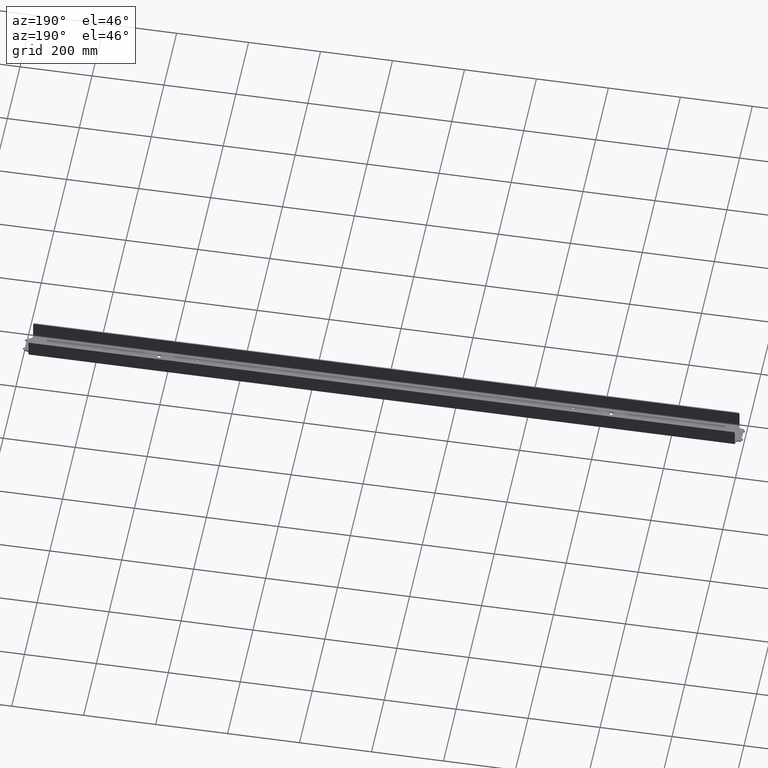
[diagram: clean part render]
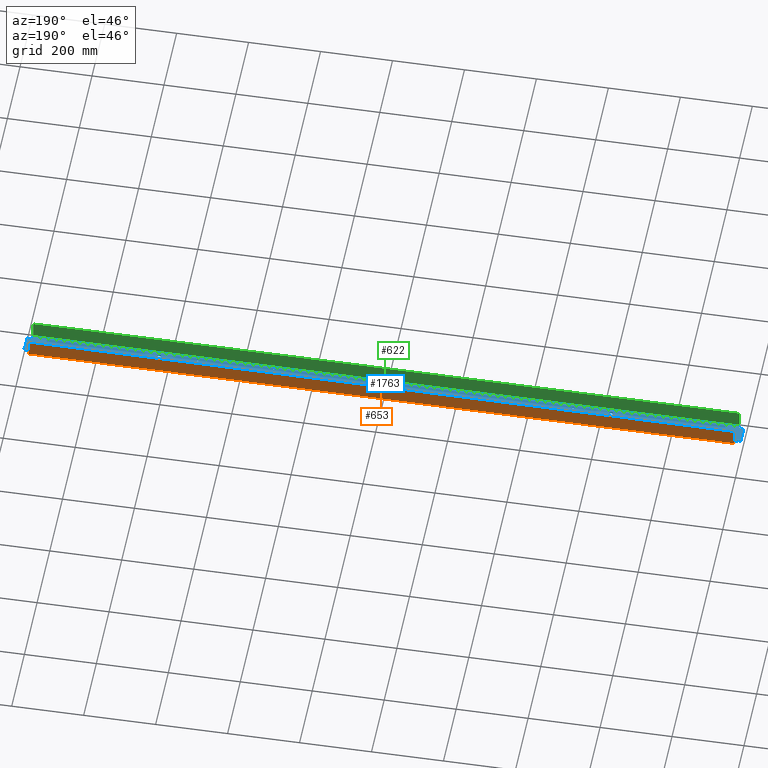
[diagram: same view with three faces highlighted in distinct colors, each labeled with its STEP entity id]
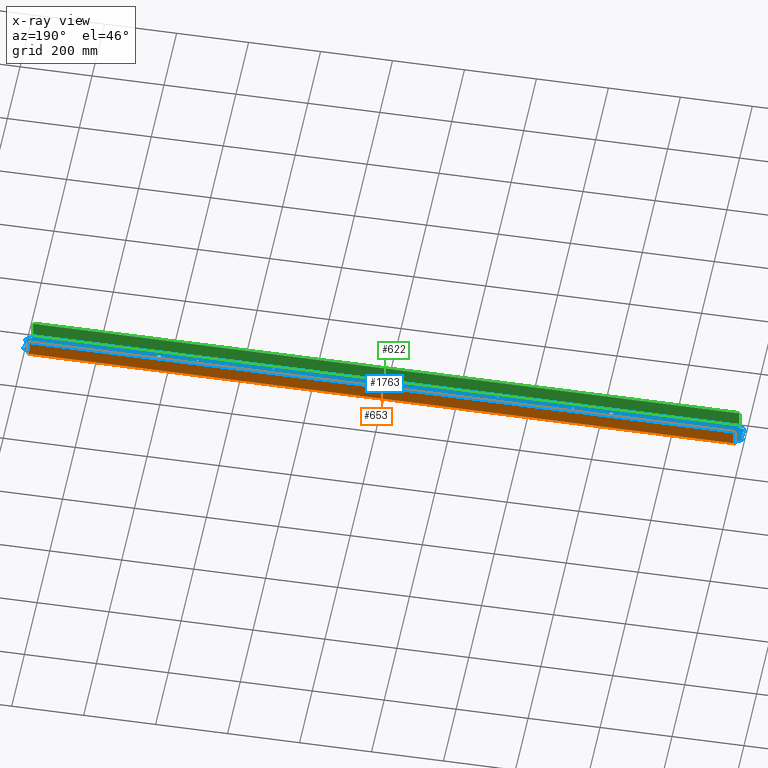
[diagram: x-ray of the same camera — body ghosted, the three highlighted faces saturated]
A machine part, auxiliary view with three faces highlighted in distinct colors.
The next image is the same camera in x-ray (body ghosted, the three faces saturated) — at least one of them is partly hidden behind the body in this view.
Their STEP definitions:

[orange] entity #653 — the highlighted planar face has unit normal (0, -1, 0).
#36 = AXIS2_PLACEMENT_3D ( 'NONE', #2131, #2090, #125 ) ;
#74 = LINE ( 'NONE', #2944, #1698 ) ;
#95 = AXIS2_PLACEMENT_3D ( 'NONE', #2272, #1288, #1259 ) ;
#125 = DIRECTION ( 'NONE',  ( 0.000000000000000000, 0.000000000000000000, -1.000000000000000000 ) ) ;
#236 = ORIENTED_EDGE ( 'NONE', *, *, #1657, .F. ) ;
#350 = VERTEX_POINT ( 'NONE', #1719 ) ;
#351 = AXIS2_PLACEMENT_3D ( 'NONE', #1675, #1844, #901 ) ;
#498 = CARTESIAN_POINT ( 'NONE',  ( 976.4999999999996589, -1093.805262667904117, 675.0000000000002274 ) ) ;
#538 = LINE ( 'NONE', #1013, #604 ) ;
#604 = VECTOR ( 'NONE', #1001, 1000.000000000000000 ) ;
#637 = ORIENTED_EDGE ( 'NONE', *, *, #1626, .F. ) ;
#653 = ADVANCED_FACE ( 'NONE', ( #1769 ), #1531, .F. ) ;
#667 = VECTOR ( 'NONE', #1493, 1000.000000000000000 ) ;
#901 = DIRECTION ( 'NONE',  ( 0.000000000000000000, 0.000000000000000000, -1.000000000000000000 ) ) ;
#943 = VERTEX_POINT ( 'NONE', #2890 ) ;
#964 = VERTEX_POINT ( 'NONE', #985 ) ;
#985 = CARTESIAN_POINT ( 'NONE',  ( -981.4999999999995453, -1093.805262667904117, 670.0000000000002274 ) ) ;
#1001 = DIRECTION ( 'NONE',  ( -0.000000000000000000, 0.000000000000000000, 1.000000000000000000 ) ) ;
#1013 = CARTESIAN_POINT ( 'NONE',  ( 981.4999999999996589, -1093.805262667904117, 625.0000000000001137 ) ) ;
#1200 = EDGE_CURVE ( 'NONE', #1921, #2620, #2923, .T. ) ;
#1258 = ORIENTED_EDGE ( 'NONE', *, *, #1200, .F. ) ;
#1259 = DIRECTION ( 'NONE',  ( 0.000000000000000000, -0.000000000000000000, -1.000000000000000000 ) ) ;
#1288 = DIRECTION ( 'NONE',  ( 0.000000000000000000, -1.000000000000000000, 0.000000000000000000 ) ) ;
#1493 = DIRECTION ( 'NONE',  ( -1.000000000000000000, 0.000000000000000000, 0.000000000000000000 ) ) ;
#1531 = PLANE ( 'NONE',  #95 ) ;
#1626 = EDGE_CURVE ( 'NONE', #350, #1921, #2844, .T. ) ;
#1657 = EDGE_CURVE ( 'NONE', #2620, #964, #2583, .T. ) ;
#1675 = CARTESIAN_POINT ( 'NONE',  ( 976.4999999999996589, -1093.805262667904117, 670.0000000000002274 ) ) ;
#1697 = EDGE_CURVE ( 'NONE', #943, #1962, #3200, .T. ) ;
#1698 = VECTOR ( 'NONE', #2102, 1000.000000000000000 ) ;
#1719 = CARTESIAN_POINT ( 'NONE',  ( 981.4999999999996589, -1093.805262667904117, 670.0000000000002274 ) ) ;
#1769 = FACE_OUTER_BOUND ( 'NONE', #2543, .T. ) ;
#1780 = CARTESIAN_POINT ( 'NONE',  ( -981.4999999999995453, -1093.805262667904117, 631.0000000000001137 ) ) ;
#1830 = DIRECTION ( 'NONE',  ( -1.000000000000000000, -0.000000000000000000, -0.000000000000000000 ) ) ;
#1836 = ORIENTED_EDGE ( 'NONE', *, *, #2440, .F. ) ;
#1844 = DIRECTION ( 'NONE',  ( 0.000000000000000000, -1.000000000000000000, 0.000000000000000000 ) ) ;
#1921 = VERTEX_POINT ( 'NONE', #498 ) ;
#1962 = VERTEX_POINT ( 'NONE', #1780 ) ;
#2017 = CARTESIAN_POINT ( 'NONE',  ( -976.4999999999996589, -1093.805262667904117, 675.0000000000002274 ) ) ;
#2090 = DIRECTION ( 'NONE',  ( 0.000000000000000000, -1.000000000000000000, 0.000000000000000000 ) ) ;
#2102 = DIRECTION ( 'NONE',  ( 0.000000000000000000, -0.000000000000000000, -1.000000000000000000 ) ) ;
#2131 = CARTESIAN_POINT ( 'NONE',  ( -976.4999999999996589, -1093.805262667904117, 670.0000000000002274 ) ) ;
#2263 = VECTOR ( 'NONE', #1830, 1000.000000000000000 ) ;
#2272 = CARTESIAN_POINT ( 'NONE',  ( 1090.972523324353915, -1093.805262667904117, 625.0000000000001137 ) ) ;
#2322 = ORIENTED_EDGE ( 'NONE', *, *, #2708, .F. ) ;
#2440 = EDGE_CURVE ( 'NONE', #943, #350, #538, .T. ) ;
#2543 = EDGE_LOOP ( 'NONE', ( #1836, #2996, #2322, #236, #1258, #637 ) ) ;
#2583 = CIRCLE ( 'NONE', #36, 5.000000000000004441 ) ;
#2620 = VERTEX_POINT ( 'NONE', #2017 ) ;
#2708 = EDGE_CURVE ( 'NONE', #964, #1962, #74, .T. ) ;
#2844 = CIRCLE ( 'NONE', #351, 5.000000000000004441 ) ;
#2867 = CARTESIAN_POINT ( 'NONE',  ( 1090.972523324353915, -1093.805262667904117, 675.0000000000002274 ) ) ;
#2890 = CARTESIAN_POINT ( 'NONE',  ( 981.4999999999996589, -1093.805262667904117, 631.0000000000001137 ) ) ;
#2923 = LINE ( 'NONE', #2867, #2263 ) ;
#2944 = CARTESIAN_POINT ( 'NONE',  ( -981.4999999999995453, -1093.805262667904117, 625.0000000000001137 ) ) ;
#2996 = ORIENTED_EDGE ( 'NONE', *, *, #1697, .T. ) ;
#3200 = LINE ( 'NONE', #3232, #667 ) ;
#3232 = CARTESIAN_POINT ( 'NONE',  ( 1090.972523324353915, -1093.805262667904117, 631.0000000000001137 ) ) ;

[blue] entity #1763 — the highlighted planar face has unit normal (-0, 0, 1).
#1 = EDGE_CURVE ( 'NONE', #1839, #1101, #522, .T. ) ;
#6 = CARTESIAN_POINT ( 'NONE',  ( -523.1000000000003638, -1093.805262667904117, 628.0000000000001137 ) ) ;
#7 = VERTEX_POINT ( 'NONE', #2026 ) ;
#9 = EDGE_CURVE ( 'NONE', #915, #3000, #3051, .T. ) ;
#13 = CARTESIAN_POINT ( 'NONE',  ( 981.4999999999996589, -1163.805262667904117, 628.0000000000001137 ) ) ;
#20 = DIRECTION ( 'NONE',  ( 0.000000000000000000, -1.000000000000000000, 0.000000000000000000 ) ) ;
#22 = LINE ( 'NONE', #1572, #1954 ) ;
#23 = DIRECTION ( 'NONE',  ( 1.000000000000000000, 0.000000000000000000, 0.000000000000000000 ) ) ;
#29 = CIRCLE ( 'NONE', #1492, 5.000000000000115463 ) ;
#31 = DIRECTION ( 'NONE',  ( 0.000000000000000000, 1.000000000000000000, -0.000000000000000000 ) ) ;
#32 = AXIS2_PLACEMENT_3D ( 'NONE', #1519, #1963, #2517 ) ;
#44 = CARTESIAN_POINT ( 'NONE',  ( -309.8999999999996362, -1102.805262667903889, 628.0000000000001137 ) ) ;
#51 = CARTESIAN_POINT ( 'NONE',  ( -998.9999999999996589, -1113.305262667903662, 628.0000000000000000 ) ) ;
#59 = EDGE_CURVE ( 'NONE', #1406, #444, #2540, .T. ) ;
#63 = VERTEX_POINT ( 'NONE', #2544 ) ;
#65 = DIRECTION ( 'NONE',  ( 0.000000000000000000, 0.000000000000000000, 1.000000000000000000 ) ) ;
#67 = CARTESIAN_POINT ( 'NONE',  ( -996.0000000000006821, -1150.305262667904117, 628.0000000000000000 ) ) ;
#68 = EDGE_CURVE ( 'NONE', #2932, #189, #532, .T. ) ;
#77 = VERTEX_POINT ( 'NONE', #51 ) ;
#79 = DIRECTION ( 'NONE',  ( 0.000000000000000000, -0.000000000000000000, -1.000000000000000000 ) ) ;
#89 = VECTOR ( 'NONE', #2449, 1000.000000000000000 ) ;
#91 = AXIS2_PLACEMENT_3D ( 'NONE', #619, #1073, #2606 ) ;
#97 = CARTESIAN_POINT ( 'NONE',  ( -523.1000000000005912, -1113.805262667903662, 628.0000000000001137 ) ) ;
#104 = CARTESIAN_POINT ( 'NONE',  ( -313.0999999999996248, -1108.805262667903889, 628.0000000000001137 ) ) ;
#119 = ORIENTED_EDGE ( 'NONE', *, *, #2022, .T. ) ;
#124 = DIRECTION ( 'NONE',  ( -1.000000000000000000, 0.000000000000000000, 0.000000000000000000 ) ) ;
#128 = CARTESIAN_POINT ( 'NONE',  ( 990.0000000000006821, -1108.305262667903662, 628.0000000000001137 ) ) ;
#142 = CARTESIAN_POINT ( 'NONE',  ( -989.9999999999995453, -1099.805262667904117, 628.0000000000001137 ) ) ;
#143 = VECTOR ( 'NONE', #124, 1000.000000000000000 ) ;
#153 = ORIENTED_EDGE ( 'NONE', *, *, #1056, .T. ) ;
#154 = ORIENTED_EDGE ( 'NONE', *, *, #2775, .T. ) ;
#156 = VECTOR ( 'NONE', #1539, 1000.000000000000000 ) ;
#159 = ORIENTED_EDGE ( 'NONE', *, *, #1432, .T. ) ;
#162 = DIRECTION ( 'NONE',  ( -1.000000000000000000, 0.000000000000000000, -0.000000000000000000 ) ) ;
#163 = CARTESIAN_POINT ( 'NONE',  ( -313.0999999999996248, -1160.805262667903662, 628.0000000000001137 ) ) ;
#174 = EDGE_CURVE ( 'NONE', #3205, #2829, #1619, .T. ) ;
#176 = VERTEX_POINT ( 'NONE', #700 ) ;
#178 = CARTESIAN_POINT ( 'NONE',  ( -523.1000000000005912, -1155.805262667904344, 628.0000000000001137 ) ) ;
#179 = LINE ( 'NONE', #2469, #3114 ) ;
#187 = VERTEX_POINT ( 'NONE', #437 ) ;
#189 = VERTEX_POINT ( 'NONE', #1395 ) ;
#193 = ORIENTED_EDGE ( 'NONE', *, *, #322, .F. ) ;
#195 = EDGE_CURVE ( 'NONE', #2410, #1363, #921, .T. ) ;
#212 = AXIS2_PLACEMENT_3D ( 'NONE', #574, #311, #542 ) ;
#213 = CARTESIAN_POINT ( 'NONE',  ( -998.9999999999996589, -1114.305262667903435, 628.0000000000000000 ) ) ;
#215 = CARTESIAN_POINT ( 'NONE',  ( 996.0000000000003411, -1093.805262667904117, 628.0000000000001137 ) ) ;
#219 = CARTESIAN_POINT ( 'NONE',  ( -523.1000000000004775, -1149.805262667904344, 628.0000000000001137 ) ) ;
#222 = ORIENTED_EDGE ( 'NONE', *, *, #456, .T. ) ;
#224 = EDGE_CURVE ( 'NONE', #3000, #1958, #668, .T. ) ;
#226 = LINE ( 'NONE', #2982, #1029 ) ;
#237 = CARTESIAN_POINT ( 'NONE',  ( 989.9999999999995453, -1163.805262667904117, 628.0000000000001137 ) ) ;
#242 = DIRECTION ( 'NONE',  ( 0.000000000000000000, -1.000000000000000000, 0.000000000000000000 ) ) ;
#251 = CARTESIAN_POINT ( 'NONE',  ( -998.9999999999996589, -1117.305262667903662, 628.0000000000000000 ) ) ;
#252 = ORIENTED_EDGE ( 'NONE', *, *, #2886, .F. ) ;
#253 = AXIS2_PLACEMENT_3D ( 'NONE', #1272, #1974, #760 ) ;
#266 = DIRECTION ( 'NONE',  ( 1.000000000000000000, -0.000000000000000000, 0.000000000000000000 ) ) ;
#271 = CIRCLE ( 'NONE', #2446, 1.000000000000000888 ) ;
#276 = CARTESIAN_POINT ( 'NONE',  ( 519.9000000000004320, -1155.805262667904344, 628.0000000000001137 ) ) ;
#277 = EDGE_CURVE ( 'NONE', #3086, #7, #1394, .T. ) ;
#279 = CARTESIAN_POINT ( 'NONE',  ( -309.8999999999996362, -1102.805262667903889, 628.0000000000001137 ) ) ;
#284 = ORIENTED_EDGE ( 'NONE', *, *, #2863, .F. ) ;
#300 = VECTOR ( 'NONE', #2291, 1000.000000000000000 ) ;
#311 = DIRECTION ( 'NONE',  ( -0.000000000000000000, -0.000000000000000000, -1.000000000000000000 ) ) ;
#319 = CARTESIAN_POINT ( 'NONE',  ( 628.1567381882845211, -1113.805262667904117, 628.0000000000001137 ) ) ;
#320 = ORIENTED_EDGE ( 'NONE', *, *, #2613, .F. ) ;
#322 = EDGE_CURVE ( 'NONE', #77, #2731, #2215, .T. ) ;
#324 = DIRECTION ( 'NONE',  ( -1.000000000000000000, -0.000000000000000000, -0.000000000000000000 ) ) ;
#328 = ORIENTED_EDGE ( 'NONE', *, *, #2071, .T. ) ;
#329 = ORIENTED_EDGE ( 'NONE', *, *, #1452, .T. ) ;
#332 = EDGE_CURVE ( 'NONE', #1958, #1802, #1473, .T. ) ;
#335 = CARTESIAN_POINT ( 'NONE',  ( -313.0999999999996248, -1108.805262667903889, 628.0000000000001137 ) ) ;
#342 = DIRECTION ( 'NONE',  ( 0.000000000000000000, 1.000000000000000000, 0.000000000000000000 ) ) ;
#347 = VERTEX_POINT ( 'NONE', #13 ) ;
#354 = CIRCLE ( 'NONE', #3220, 1.000000000000000888 ) ;
#357 = VERTEX_POINT ( 'NONE', #990 ) ;
#361 = DIRECTION ( 'NONE',  ( -1.000000000000000000, 0.000000000000000000, -0.000000000000000000 ) ) ;
#368 = EDGE_CURVE ( 'NONE', #2932, #1939, #2911, .T. ) ;
#370 = EDGE_CURVE ( 'NONE', #2029, #2081, #778, .T. ) ;
#375 = LINE ( 'NONE', #2584, #2314 ) ;
#394 = CARTESIAN_POINT ( 'NONE',  ( 996.0000000000003411, -1150.305262667904117, 628.0000000000001137 ) ) ;
#421 = LINE ( 'NONE', #1458, #2438 ) ;
#431 = VERTEX_POINT ( 'NONE', #593 ) ;
#432 = EDGE_LOOP ( 'NONE', ( #2305, #2391, #568, #1541 ) ) ;
#433 = LINE ( 'NONE', #1392, #1743 ) ;
#434 = FACE_OUTER_BOUND ( 'NONE', #791, .T. ) ;
#435 = LINE ( 'NONE', #937, #1598 ) ;
#437 = CARTESIAN_POINT ( 'NONE',  ( -523.1000000000004775, -1107.805262667903889, 628.0000000000001137 ) ) ;
#438 = DIRECTION ( 'NONE',  ( 1.000000000000000000, 0.000000000000000000, 0.000000000000000000 ) ) ;
#441 = CARTESIAN_POINT ( 'NONE',  ( 523.1000000000004775, -1093.805262667904117, 628.0000000000001137 ) ) ;
#444 = VERTEX_POINT ( 'NONE', #1591 ) ;
#445 = CARTESIAN_POINT ( 'NONE',  ( -996.0000000000006821, -1113.305262667903662, 628.0000000000000000 ) ) ;
#449 = ORIENTED_EDGE ( 'NONE', *, *, #3212, .T. ) ;
#456 = EDGE_CURVE ( 'NONE', #189, #1909, #375, .T. ) ;
#460 = VECTOR ( 'NONE', #1898, 1000.000000000000000 ) ;
#462 = DIRECTION ( 'NONE',  ( 1.000000000000000000, 0.000000000000000000, 0.000000000000000000 ) ) ;
#463 = ORIENTED_EDGE ( 'NONE', *, *, #2502, .F. ) ;
#464 = DIRECTION ( 'NONE',  ( 0.000000000000000000, -1.000000000000000000, 0.000000000000000000 ) ) ;
#470 = FACE_BOUND ( 'NONE', #3122, .T. ) ;
#483 = ORIENTED_EDGE ( 'NONE', *, *, #1209, .T. ) ;
#484 = CARTESIAN_POINT ( 'NONE',  ( -313.0999999999996248, -1102.805262667903889, 628.0000000000001137 ) ) ;
#486 = CARTESIAN_POINT ( 'NONE',  ( -1003.999999999998636, -1113.305262667903662, 628.0000000000000000 ) ) ;
#487 = CARTESIAN_POINT ( 'NONE',  ( 1003.999999999998636, -1150.305262667904117, 628.0000000000000000 ) ) ;
#493 = CARTESIAN_POINT ( 'NONE',  ( 309.8999999999996362, -1108.805262667903889, 628.0000000000001137 ) ) ;
#495 = ORIENTED_EDGE ( 'NONE', *, *, #1574, .F. ) ;
#496 = EDGE_CURVE ( 'NONE', #2734, #2261, #2264, .T. ) ;
#503 = VECTOR ( 'NONE', #817, 1000.000000000000000 ) ;
#504 = EDGE_CURVE ( 'NONE', #1046, #431, #1756, .T. ) ;
#507 = LINE ( 'NONE', #2817, #2718 ) ;
#518 = VECTOR ( 'NONE', #2297, 1000.000000000000000 ) ;
#520 = VERTEX_POINT ( 'NONE', #44 ) ;
#522 = LINE ( 'NONE', #2560, #1497 ) ;
#525 = DIRECTION ( 'NONE',  ( 0.000000000000000000, 1.000000000000000000, 0.000000000000000000 ) ) ;
#526 = CARTESIAN_POINT ( 'NONE',  ( 523.1000000000004775, -1155.805262667904344, 628.0000000000001137 ) ) ;
#528 = CARTESIAN_POINT ( 'NONE',  ( 996.0000000000003411, -1118.305262667903435, 628.0000000000001137 ) ) ;
#532 = LINE ( 'NONE', #1546, #1997 ) ;
#536 = CARTESIAN_POINT ( 'NONE',  ( -996.0000000000006821, -1108.305262667903662, 628.0000000000001137 ) ) ;
#542 = DIRECTION ( 'NONE',  ( -1.000000000000000000, 0.000000000000000000, 0.000000000000000000 ) ) ;
#547 = VECTOR ( 'NONE', #1661, 1000.000000000000000 ) ;
#551 = EDGE_CURVE ( 'NONE', #2946, #2029, #421, .T. ) ;
#564 = VECTOR ( 'NONE', #840, 1000.000000000000000 ) ;
#568 = ORIENTED_EDGE ( 'NONE', *, *, #2350, .F. ) ;
#571 = EDGE_CURVE ( 'NONE', #1104, #2410, #2053, .T. ) ;
#574 = CARTESIAN_POINT ( 'NONE',  ( 998.9999999999996589, -1146.305262667904117, 628.0000000000000000 ) ) ;
#575 = VERTEX_POINT ( 'NONE', #1696 ) ;
#577 = EDGE_CURVE ( 'NONE', #2629, #1331, #1421, .T. ) ;
#582 = CARTESIAN_POINT ( 'NONE',  ( -628.1567381882845211, -1113.805262667904117, 628.0000000000001137 ) ) ;
#593 = CARTESIAN_POINT ( 'NONE',  ( 999.9999999999996589, -1146.305262667904117, 628.0000000000000000 ) ) ;
#596 = DIRECTION ( 'NONE',  ( -1.000000000000000000, 0.000000000000000000, 0.000000000000000000 ) ) ;
#597 = VECTOR ( 'NONE', #1155, 1000.000000000000000 ) ;
#598 = CARTESIAN_POINT ( 'NONE',  ( -313.0999999999996248, -1154.805262667903889, 628.0000000000001137 ) ) ;
#601 = VERTEX_POINT ( 'NONE', #493 ) ;
#606 = VECTOR ( 'NONE', #342, 1000.000000000000000 ) ;
#607 = VERTEX_POINT ( 'NONE', #1243 ) ;
#611 = EDGE_CURVE ( 'NONE', #2337, #1459, #2767, .T. ) ;
#618 = VECTOR ( 'NONE', #640, 1000.000000000000000 ) ;
#619 = CARTESIAN_POINT ( 'NONE',  ( -998.9999999999996589, -1146.305262667904117, 628.0000000000000000 ) ) ;
#624 = CARTESIAN_POINT ( 'NONE',  ( 313.0999999999996248, -1108.805262667903889, 628.0000000000001137 ) ) ;
#635 = VERTEX_POINT ( 'NONE', #3028 ) ;
#640 = DIRECTION ( 'NONE',  ( 0.000000000000000000, 1.000000000000000000, 0.000000000000000000 ) ) ;
#642 = VERTEX_POINT ( 'NONE', #276 ) ;
#644 = CARTESIAN_POINT ( 'NONE',  ( -309.8999999999996362, -1160.805262667903662, 628.0000000000001137 ) ) ;
#662 = VERTEX_POINT ( 'NONE', #2981 ) ;
#668 = LINE ( 'NONE', #1148, #2221 ) ;
#681 = CARTESIAN_POINT ( 'NONE',  ( -309.8999999999996362, -1154.805262667903889, 628.0000000000001137 ) ) ;
#694 = DIRECTION ( 'NONE',  ( -0.000000000000000000, 0.000000000000000000, 1.000000000000000000 ) ) ;
#700 = CARTESIAN_POINT ( 'NONE',  ( 523.1000000000004775, -1107.805262667903889, 628.0000000000001137 ) ) ;
#702 = VERTEX_POINT ( 'NONE', #335 ) ;
#712 = VERTEX_POINT ( 'NONE', #3055 ) ;
#713 = CARTESIAN_POINT ( 'NONE',  ( 519.9000000000004320, -1107.805262667903889, 628.0000000000001137 ) ) ;
#714 = FACE_BOUND ( 'NONE', #2007, .T. ) ;
#722 = CIRCLE ( 'NONE', #253, 1.000000000000000888 ) ;
#723 = EDGE_CURVE ( 'NONE', #712, #1287, #2317, .T. ) ;
#726 = ORIENTED_EDGE ( 'NONE', *, *, #332, .T. ) ;
#734 = CARTESIAN_POINT ( 'NONE',  ( -519.9000000000004320, -1149.805262667904344, 628.0000000000001137 ) ) ;
#739 = ORIENTED_EDGE ( 'NONE', *, *, #59, .T. ) ;
#741 = VERTEX_POINT ( 'NONE', #1634 ) ;
#750 = DIRECTION ( 'NONE',  ( -1.000000000000000000, 0.000000000000000000, 0.000000000000000000 ) ) ;
#751 = CARTESIAN_POINT ( 'NONE',  ( -1003.999999999998636, -1150.305262667904117, 628.0000000000000000 ) ) ;
#760 = DIRECTION ( 'NONE',  ( -1.000000000000000000, 0.000000000000000000, 0.000000000000000000 ) ) ;
#765 = VECTOR ( 'NONE', #1271, 1000.000000000000000 ) ;
#768 = CARTESIAN_POINT ( 'NONE',  ( 309.8999999999996362, -1160.805262667903662, 628.0000000000001137 ) ) ;
#771 = LINE ( 'NONE', #1757, #2473 ) ;
#778 = LINE ( 'NONE', #971, #1652 ) ;
#779 = CARTESIAN_POINT ( 'NONE',  ( 1090.972523324353915, -1108.305262667903662, 628.0000000000001137 ) ) ;
#785 = ORIENTED_EDGE ( 'NONE', *, *, #2879, .T. ) ;
#789 = ORIENTED_EDGE ( 'NONE', *, *, #2597, .T. ) ;
#791 = EDGE_LOOP ( 'NONE', ( #2523, #1266, #2663, #193, #1764, #2819, #3148, #483, #1299, #2371, #847, #328, #2837, #1924, #3174, #449, #1449, #814, #785, #2107, #1386, #1892, #320, #284, #1382, #1821, #3128, #998, #805, #1027, #2464, #1175, #222, #3097, #739, #495 ) ) ;
#805 = ORIENTED_EDGE ( 'NONE', *, *, #1923, .F. ) ;
#813 = DIRECTION ( 'NONE',  ( 0.000000000000000000, -1.000000000000000000, 0.000000000000000000 ) ) ;
#814 = ORIENTED_EDGE ( 'NONE', *, *, #849, .F. ) ;
#816 = CIRCLE ( 'NONE', #2212, 5.000000000000115463 ) ;
#817 = DIRECTION ( 'NONE',  ( 0.000000000000000000, -1.000000000000000000, 0.000000000000000000 ) ) ;
#821 = AXIS2_PLACEMENT_3D ( 'NONE', #2247, #3231, #2972 ) ;
#830 = CARTESIAN_POINT ( 'NONE',  ( 999.9999999999996589, -1114.305262667903435, 628.0000000000000000 ) ) ;
#839 = CARTESIAN_POINT ( 'NONE',  ( -981.4999999999995453, -1163.805262667904117, 628.0000000000001137 ) ) ;
#840 = DIRECTION ( 'NONE',  ( 1.000000000000000000, -0.000000000000000000, 0.000000000000000000 ) ) ;
#845 = VERTEX_POINT ( 'NONE', #2259 ) ;
#847 = ORIENTED_EDGE ( 'NONE', *, *, #1968, .T. ) ;
#849 = EDGE_CURVE ( 'NONE', #347, #1403, #22, .T. ) ;
#852 = VECTOR ( 'NONE', #813, 1000.000000000000000 ) ;
#854 = DIRECTION ( 'NONE',  ( 1.000000000000000000, 0.000000000000000000, 0.000000000000000000 ) ) ;
#856 = VERTEX_POINT ( 'NONE', #528 ) ;
#857 = AXIS2_PLACEMENT_3D ( 'NONE', #3104, #2839, #2303 ) ;
#867 = DIRECTION ( 'NONE',  ( 1.000000000000000000, 0.000000000000000000, 0.000000000000000000 ) ) ;
#873 = CARTESIAN_POINT ( 'NONE',  ( -999.9999999999996589, -1145.305262667904344, 628.0000000000000000 ) ) ;
#878 = LINE ( 'NONE', #215, #1650 ) ;
#881 = LINE ( 'NONE', #2399, #2954 ) ;
#885 = CARTESIAN_POINT ( 'NONE',  ( 1090.972523324353915, -1107.805262667903889, 628.0000000000001137 ) ) ;
#915 = VERTEX_POINT ( 'NONE', #1077 ) ;
#921 = LINE ( 'NONE', #163, #460 ) ;
#929 = CARTESIAN_POINT ( 'NONE',  ( -628.1567381882845211, -1149.805262667904117, 628.0000000000001137 ) ) ;
#931 = EDGE_CURVE ( 'NONE', #702, #845, #1855, .T. ) ;
#936 = FACE_BOUND ( 'NONE', #2910, .T. ) ;
#937 = CARTESIAN_POINT ( 'NONE',  ( 1090.972523324353915, -1108.305262667903662, 628.0000000000001137 ) ) ;
#938 = DIRECTION ( 'NONE',  ( 0.000000000000000000, 1.000000000000000000, -0.000000000000000000 ) ) ;
#939 = EDGE_CURVE ( 'NONE', #601, #2720, #2068, .T. ) ;
#956 = FACE_BOUND ( 'NONE', #1053, .T. ) ;
#958 = EDGE_CURVE ( 'NONE', #77, #607, #271, .T. ) ;
#971 = CARTESIAN_POINT ( 'NONE',  ( 996.0000000000003411, -1093.805262667904117, 628.0000000000001137 ) ) ;
#976 = EDGE_CURVE ( 'NONE', #662, #2318, #226, .T. ) ;
#990 = CARTESIAN_POINT ( 'NONE',  ( 998.9999999999996589, -1118.305262667903435, 628.0000000000000000 ) ) ;
#993 = ORIENTED_EDGE ( 'NONE', *, *, #1372, .F. ) ;
#995 = ORIENTED_EDGE ( 'NONE', *, *, #931, .F. ) ;
#998 = ORIENTED_EDGE ( 'NONE', *, *, #2843, .F. ) ;
#1008 = LINE ( 'NONE', #1953, #1542 ) ;
#1010 = LINE ( 'NONE', #2477, #1887 ) ;
#1020 = CARTESIAN_POINT ( 'NONE',  ( -996.0000000000006821, -1118.305262667903435, 628.0000000000000000 ) ) ;
#1025 = CARTESIAN_POINT ( 'NONE',  ( 628.1567381882845211, -1149.805262667904117, 628.0000000000001137 ) ) ;
#1027 = ORIENTED_EDGE ( 'NONE', *, *, #1765, .F. ) ;
#1029 = VECTOR ( 'NONE', #2195, 1000.000000000000000 ) ;
#1031 = EDGE_CURVE ( 'NONE', #1180, #2337, #507, .T. ) ;
#1046 = VERTEX_POINT ( 'NONE', #1334 ) ;
#1051 = LINE ( 'NONE', #3052, #564 ) ;
#1053 = EDGE_LOOP ( 'NONE', ( #1078, #2395 ) ) ;
#1055 = CARTESIAN_POINT ( 'NONE',  ( 313.0999999999996248, -1154.805262667903889, 628.0000000000001137 ) ) ;
#1056 = EDGE_CURVE ( 'NONE', #2318, #176, #1109, .T. ) ;
#1059 = CIRCLE ( 'NONE', #1184, 5.000000000000115463 ) ;
#1065 = DIRECTION ( 'NONE',  ( 0.000000000000000000, 1.000000000000000000, 0.000000000000000000 ) ) ;
#1066 = CARTESIAN_POINT ( 'NONE',  ( -999.9999999999996589, -1113.305262667903662, 628.0000000000000000 ) ) ;
#1073 = DIRECTION ( 'NONE',  ( 0.000000000000000000, 0.000000000000000000, 1.000000000000000000 ) ) ;
#1077 = CARTESIAN_POINT ( 'NONE',  ( 309.8999999999996362, -1160.805262667903662, 628.0000000000001137 ) ) ;
#1078 = ORIENTED_EDGE ( 'NONE', *, *, #1929, .F. ) ;
#1079 = VECTOR ( 'NONE', #2194, 1000.000000000000000 ) ;
#1087 = VERTEX_POINT ( 'NONE', #97 ) ;
#1090 = DIRECTION ( 'NONE',  ( 1.000000000000000000, -0.000000000000000000, 0.000000000000000000 ) ) ;
#1096 = CARTESIAN_POINT ( 'NONE',  ( -623.1567381882844074, -1149.805262667904117, 628.0000000000001137 ) ) ;
#1098 = LINE ( 'NONE', #2275, #300 ) ;
#1101 = VERTEX_POINT ( 'NONE', #67 ) ;
#1104 = VERTEX_POINT ( 'NONE', #598 ) ;
#1105 = EDGE_CURVE ( 'NONE', #2462, #3205, #1051, .T. ) ;
#1108 = CARTESIAN_POINT ( 'NONE',  ( 1090.972523324353915, -1107.805262667903889, 628.0000000000001137 ) ) ;
#1109 = LINE ( 'NONE', #885, #2859 ) ;
#1116 = EDGE_LOOP ( 'NONE', ( #3150, #2304, #153, #329 ) ) ;
#1117 = VECTOR ( 'NONE', #438, 1000.000000000000000 ) ;
#1127 = AXIS2_PLACEMENT_3D ( 'NONE', #2296, #79, #2776 ) ;
#1128 = DIRECTION ( 'NONE',  ( 0.000000000000000000, -0.000000000000000000, -1.000000000000000000 ) ) ;
#1129 = EDGE_CURVE ( 'NONE', #607, #1815, #2561, .T. ) ;
#1147 = DIRECTION ( 'NONE',  ( 1.000000000000000000, 0.000000000000000000, 0.000000000000000000 ) ) ;
#1148 = CARTESIAN_POINT ( 'NONE',  ( 309.8999999999996362, -1154.805262667903889, 628.0000000000001137 ) ) ;
#1155 = DIRECTION ( 'NONE',  ( 1.000000000000000000, 0.000000000000000000, 0.000000000000000000 ) ) ;
#1156 = ORIENTED_EDGE ( 'NONE', *, *, #277, .F. ) ;
#1164 = FACE_BOUND ( 'NONE', #3124, .T. ) ;
#1171 = CIRCLE ( 'NONE', #1983, 5.000000000000115463 ) ;
#1175 = ORIENTED_EDGE ( 'NONE', *, *, #68, .T. ) ;
#1176 = CARTESIAN_POINT ( 'NONE',  ( 313.0999999999996248, -1102.805262667903889, 628.0000000000001137 ) ) ;
#1180 = VERTEX_POINT ( 'NONE', #2831 ) ;
#1182 = CARTESIAN_POINT ( 'NONE',  ( -313.0999999999996248, -1160.805262667903662, 628.0000000000001137 ) ) ;
#1184 = AXIS2_PLACEMENT_3D ( 'NONE', #319, #2047, #2270 ) ;
#1185 = VECTOR ( 'NONE', #2096, 1000.000000000000000 ) ;
#1192 = LINE ( 'NONE', #441, #547 ) ;
#1193 = LINE ( 'NONE', #1414, #1185 ) ;
#1196 = CARTESIAN_POINT ( 'NONE',  ( -990.0000000000006821, -1108.305262667903662, 628.0000000000001137 ) ) ;
#1202 = DIRECTION ( 'NONE',  ( 0.000000000000000000, -0.000000000000000000, -1.000000000000000000 ) ) ;
#1208 = ORIENTED_EDGE ( 'NONE', *, *, #2696, .T. ) ;
#1209 = EDGE_CURVE ( 'NONE', #741, #2829, #1193, .T. ) ;
#1210 = VERTEX_POINT ( 'NONE', #3119 ) ;
#1221 = DIRECTION ( 'NONE',  ( 0.000000000000000000, -0.000000000000000000, -1.000000000000000000 ) ) ;
#1231 = CARTESIAN_POINT ( 'NONE',  ( 313.0999999999996248, -1154.805262667903889, 628.0000000000001137 ) ) ;
#1239 = AXIS2_PLACEMENT_3D ( 'NONE', #1826, #1202, #2893 ) ;
#1240 = VECTOR ( 'NONE', #1991, 1000.000000000000000 ) ;
#1243 = CARTESIAN_POINT ( 'NONE',  ( -999.9999999999996589, -1114.305262667903435, 628.0000000000000000 ) ) ;
#1244 = AXIS2_PLACEMENT_3D ( 'NONE', #582, #1900, #1303 ) ;
#1264 = CARTESIAN_POINT ( 'NONE',  ( 998.9999999999996589, -1114.305262667903435, 628.0000000000000000 ) ) ;
#1266 = ORIENTED_EDGE ( 'NONE', *, *, #496, .T. ) ;
#1268 = DIRECTION ( 'NONE',  ( -0.000000000000000000, 0.000000000000000000, 1.000000000000000000 ) ) ;
#1269 = ORIENTED_EDGE ( 'NONE', *, *, #224, .T. ) ;
#1270 = CARTESIAN_POINT ( 'NONE',  ( 995.9999999999995453, -1155.305262667904344, 628.0000000000001137 ) ) ;
#1271 = DIRECTION ( 'NONE',  ( -1.000000000000000000, 0.000000000000000000, 0.000000000000000000 ) ) ;
#1272 = CARTESIAN_POINT ( 'NONE',  ( 998.9999999999996589, -1117.305262667903662, 628.0000000000000000 ) ) ;
#1287 = VERTEX_POINT ( 'NONE', #3146 ) ;
#1290 = CARTESIAN_POINT ( 'NONE',  ( -999.9999999999996589, -1146.305262667904117, 628.0000000000000000 ) ) ;
#1299 = ORIENTED_EDGE ( 'NONE', *, *, #174, .F. ) ;
#1303 = DIRECTION ( 'NONE',  ( 1.000000000000000000, 0.000000000000000000, 0.000000000000000000 ) ) ;
#1315 = EDGE_CURVE ( 'NONE', #2041, #662, #1008, .T. ) ;
#1319 = DIRECTION ( 'NONE',  ( 1.000000000000000000, 0.000000000000000000, 0.000000000000000000 ) ) ;
#1330 = EDGE_CURVE ( 'NONE', #1046, #2253, #3131, .T. ) ;
#1331 = VERTEX_POINT ( 'NONE', #1863 ) ;
#1334 = CARTESIAN_POINT ( 'NONE',  ( 998.9999999999996589, -1145.305262667904344, 628.0000000000000000 ) ) ;
#1344 = VECTOR ( 'NONE', #464, 1000.000000000000000 ) ;
#1345 = DIRECTION ( 'NONE',  ( 0.000000000000000000, 1.000000000000000000, -0.000000000000000000 ) ) ;
#1346 = DIRECTION ( 'NONE',  ( 1.000000000000000000, 0.000000000000000000, 0.000000000000000000 ) ) ;
#1351 = DIRECTION ( 'NONE',  ( -0.000000000000000000, 0.000000000000000000, 1.000000000000000000 ) ) ;
#1356 = EDGE_CURVE ( 'NONE', #2929, #2887, #2636, .T. ) ;
#1363 = VERTEX_POINT ( 'NONE', #2865 ) ;
#1366 = DIRECTION ( 'NONE',  ( 1.000000000000000000, 0.000000000000000000, 0.000000000000000000 ) ) ;
#1367 = VERTEX_POINT ( 'NONE', #3072 ) ;
#1372 = EDGE_CURVE ( 'NONE', #845, #520, #2589, .T. ) ;
#1375 = CARTESIAN_POINT ( 'NONE',  ( 999.9999999999996589, -1117.305262667903662, 628.0000000000000000 ) ) ;
#1382 = ORIENTED_EDGE ( 'NONE', *, *, #504, .F. ) ;
#1385 = LINE ( 'NONE', #1908, #2634 ) ;
#1386 = ORIENTED_EDGE ( 'NONE', *, *, #370, .T. ) ;
#1392 = CARTESIAN_POINT ( 'NONE',  ( 309.8999999999996362, -1102.805262667903889, 628.0000000000001137 ) ) ;
#1394 = CIRCLE ( 'NONE', #821, 5.000000000000115463 ) ;
#1395 = CARTESIAN_POINT ( 'NONE',  ( 996.0000000000003411, -1113.305262667903662, 628.0000000000001137 ) ) ;
#1396 = CARTESIAN_POINT ( 'NONE',  ( -995.9999999999995453, -1093.805262667904117, 628.0000000000001137 ) ) ;
#1399 = LINE ( 'NONE', #2385, #3062 ) ;
#1403 = VERTEX_POINT ( 'NONE', #839 ) ;
#1405 = VERTEX_POINT ( 'NONE', #2344 ) ;
#1406 = VERTEX_POINT ( 'NONE', #128 ) ;
#1410 = ORIENTED_EDGE ( 'NONE', *, *, #3197, .F. ) ;
#1411 = DIRECTION ( 'NONE',  ( 0.000000000000000000, 1.000000000000000000, -0.000000000000000000 ) ) ;
#1414 = CARTESIAN_POINT ( 'NONE',  ( -1003.999999999998636, -1118.305262667903435, 628.0000000000000000 ) ) ;
#1421 = LINE ( 'NONE', #1176, #1344 ) ;
#1426 = LINE ( 'NONE', #2864, #1117 ) ;
#1431 = EDGE_CURVE ( 'NONE', #187, #1405, #1635, .T. ) ;
#1432 = EDGE_CURVE ( 'NONE', #1367, #1087, #1399, .T. ) ;
#1437 = ORIENTED_EDGE ( 'NONE', *, *, #1431, .T. ) ;
#1442 = AXIS2_PLACEMENT_3D ( 'NONE', #2830, #3088, #1346 ) ;
#1447 = LINE ( 'NONE', #487, #2366 ) ;
#1449 = ORIENTED_EDGE ( 'NONE', *, *, #2286, .T. ) ;
#1452 = EDGE_CURVE ( 'NONE', #176, #2041, #1192, .T. ) ;
#1455 = CARTESIAN_POINT ( 'NONE',  ( 1003.999999999998636, -1118.305262667903435, 628.0000000000000000 ) ) ;
#1457 = LINE ( 'NONE', #644, #2476 ) ;
#1458 = CARTESIAN_POINT ( 'NONE',  ( 1090.972523324353915, -1155.305262667904344, 628.0000000000001137 ) ) ;
#1459 = VERTEX_POINT ( 'NONE', #219 ) ;
#1464 = ORIENTED_EDGE ( 'NONE', *, *, #9, .T. ) ;
#1469 = ORIENTED_EDGE ( 'NONE', *, *, #939, .T. ) ;
#1472 = FACE_BOUND ( 'NONE', #432, .T. ) ;
#1473 = LINE ( 'NONE', #1231, #1240 ) ;
#1480 = CARTESIAN_POINT ( 'NONE',  ( -999.9999999999996589, -1149.305262667904344, 628.0000000000000000 ) ) ;
#1487 = CIRCLE ( 'NONE', #32, 5.000000000000115463 ) ;
#1488 = VERTEX_POINT ( 'NONE', #2902 ) ;
#1492 = AXIS2_PLACEMENT_3D ( 'NONE', #2721, #1268, #462 ) ;
#1497 = VECTOR ( 'NONE', #31, 1000.000000000000000 ) ;
#1498 = AXIS2_PLACEMENT_3D ( 'NONE', #142, #1128, #23 ) ;
#1500 = DIRECTION ( 'NONE',  ( -1.000000000000000000, 0.000000000000000000, 0.000000000000000000 ) ) ;
#1502 = LINE ( 'NONE', #1455, #89 ) ;
#1511 = ORIENTED_EDGE ( 'NONE', *, *, #723, .F. ) ;
#1519 = CARTESIAN_POINT ( 'NONE',  ( 628.1567381882845211, -1113.805262667904117, 628.0000000000001137 ) ) ;
#1534 = DIRECTION ( 'NONE',  ( 1.000000000000000000, 0.000000000000000000, 0.000000000000000000 ) ) ;
#1535 = CARTESIAN_POINT ( 'NONE',  ( 313.0999999999996248, -1160.805262667903662, 628.0000000000001137 ) ) ;
#1539 = DIRECTION ( 'NONE',  ( -1.000000000000000000, 0.000000000000000000, 0.000000000000000000 ) ) ;
#1541 = ORIENTED_EDGE ( 'NONE', *, *, #195, .F. ) ;
#1542 = VECTOR ( 'NONE', #1708, 1000.000000000000000 ) ;
#1546 = CARTESIAN_POINT ( 'NONE',  ( 1003.999999999998636, -1113.305262667903662, 628.0000000000000000 ) ) ;
#1555 = CARTESIAN_POINT ( 'NONE',  ( 313.0999999999996248, -1102.805262667903889, 628.0000000000001137 ) ) ;
#1572 = CARTESIAN_POINT ( 'NONE',  ( 1090.972523324353915, -1163.805262667904117, 628.0000000000001137 ) ) ;
#1573 = VERTEX_POINT ( 'NONE', #2897 ) ;
#1574 = EDGE_CURVE ( 'NONE', #575, #444, #1426, .T. ) ;
#1575 = VERTEX_POINT ( 'NONE', #2172 ) ;
#1578 = EDGE_CURVE ( 'NONE', #2808, #1104, #881, .T. ) ;
#1587 = CARTESIAN_POINT ( 'NONE',  ( 996.0000000000003411, -1145.305262667904344, 628.0000000000001137 ) ) ;
#1588 = AXIS2_PLACEMENT_3D ( 'NONE', #2777, #2135, #2404 ) ;
#1591 = CARTESIAN_POINT ( 'NONE',  ( 981.4999999999996589, -1099.805262667904117, 628.0000000000001137 ) ) ;
#1596 = CARTESIAN_POINT ( 'NONE',  ( 309.8999999999996362, -1154.805262667903889, 628.0000000000001137 ) ) ;
#1598 = VECTOR ( 'NONE', #162, 1000.000000000000000 ) ;
#1614 = EDGE_CURVE ( 'NONE', #2731, #2261, #2656, .T. ) ;
#1616 = DIRECTION ( 'NONE',  ( -1.000000000000000000, 0.000000000000000000, 0.000000000000000000 ) ) ;
#1619 = LINE ( 'NONE', #2145, #3020 ) ;
#1620 = CARTESIAN_POINT ( 'NONE',  ( 999.9999999999996589, -1149.305262667904344, 628.0000000000000000 ) ) ;
#1634 = CARTESIAN_POINT ( 'NONE',  ( -998.9999999999996589, -1118.305262667903435, 628.0000000000000000 ) ) ;
#1635 = LINE ( 'NONE', #1108, #2535 ) ;
#1638 = VERTEX_POINT ( 'NONE', #1620 ) ;
#1643 = CARTESIAN_POINT ( 'NONE',  ( 309.8999999999996362, -1102.805262667903889, 628.0000000000001137 ) ) ;
#1649 = VERTEX_POINT ( 'NONE', #1375 ) ;
#1650 = VECTOR ( 'NONE', #2948, 1000.000000000000000 ) ;
#1652 = VECTOR ( 'NONE', #1732, 1000.000000000000000 ) ;
#1661 = DIRECTION ( 'NONE',  ( 0.000000000000000000, -1.000000000000000000, 0.000000000000000000 ) ) ;
#1672 = FACE_BOUND ( 'NONE', #2249, .T. ) ;
#1678 = CARTESIAN_POINT ( 'NONE',  ( 1090.972523324353915, -1155.305262667904344, 628.0000000000001137 ) ) ;
#1680 = EDGE_CURVE ( 'NONE', #1573, #2081, #1447, .T. ) ;
#1686 = FACE_BOUND ( 'NONE', #2472, .T. ) ;
#1696 = CARTESIAN_POINT ( 'NONE',  ( -981.4999999999995453, -1099.805262667904117, 628.0000000000001137 ) ) ;
#1701 = FACE_BOUND ( 'NONE', #1116, .T. ) ;
#1708 = DIRECTION ( 'NONE',  ( -1.000000000000000000, 0.000000000000000000, -0.000000000000000000 ) ) ;
#1712 = EDGE_CURVE ( 'NONE', #1087, #187, #2441, .T. ) ;
#1715 = DIRECTION ( 'NONE',  ( 1.000000000000000000, 0.000000000000000000, 0.000000000000000000 ) ) ;
#1720 = LINE ( 'NONE', #751, #2042 ) ;
#1724 = DIRECTION ( 'NONE',  ( 0.000000000000000000, -1.000000000000000000, 0.000000000000000000 ) ) ;
#1732 = DIRECTION ( 'NONE',  ( 0.000000000000000000, 1.000000000000000000, -0.000000000000000000 ) ) ;
#1736 = VERTEX_POINT ( 'NONE', #734 ) ;
#1743 = VECTOR ( 'NONE', #1147, 1000.000000000000000 ) ;
#1746 = VECTOR ( 'NONE', #1411, 1000.000000000000000 ) ;
#1754 = EDGE_CURVE ( 'NONE', #2887, #1101, #1720, .T. ) ;
#1756 = CIRCLE ( 'NONE', #212, 1.000000000000000888 ) ;
#1757 = CARTESIAN_POINT ( 'NONE',  ( 999.9999999999996589, -1145.305262667904344, 628.0000000000000000 ) ) ;
#1763 = ADVANCED_FACE ( 'NONE', ( #1686, #1672, #2671, #956, #434, #3180, #714, #936, #1472, #1164, #1701, #2709, #470 ), #2213, .T. ) ;
#1764 = ORIENTED_EDGE ( 'NONE', *, *, #958, .T. ) ;
#1765 = EDGE_CURVE ( 'NONE', #1939, #1649, #179, .T. ) ;
#1795 = DIRECTION ( 'NONE',  ( 1.000000000000000000, 0.000000000000000000, 0.000000000000000000 ) ) ;
#1796 = ORIENTED_EDGE ( 'NONE', *, *, #3120, .T. ) ;
#1802 = VERTEX_POINT ( 'NONE', #1535 ) ;
#1815 = VERTEX_POINT ( 'NONE', #2739 ) ;
#1821 = ORIENTED_EDGE ( 'NONE', *, *, #1330, .T. ) ;
#1822 = LINE ( 'NONE', #873, #2586 ) ;
#1826 = CARTESIAN_POINT ( 'NONE',  ( -989.9999999999995453, -1163.805262667904117, 628.0000000000001137 ) ) ;
#1835 = CARTESIAN_POINT ( 'NONE',  ( 623.1567381882844074, -1113.805262667904117, 628.0000000000001137 ) ) ;
#1839 = VERTEX_POINT ( 'NONE', #2006 ) ;
#1852 = DIRECTION ( 'NONE',  ( 0.000000000000000000, -1.000000000000000000, 0.000000000000000000 ) ) ;
#1855 = LINE ( 'NONE', #104, #2550 ) ;
#1863 = CARTESIAN_POINT ( 'NONE',  ( 313.0999999999996248, -1108.805262667903889, 628.0000000000001137 ) ) ;
#1869 = CARTESIAN_POINT ( 'NONE',  ( -313.0999999999996248, -1102.805262667903889, 628.0000000000001137 ) ) ;
#1878 = VECTOR ( 'NONE', #1795, 1000.000000000000000 ) ;
#1885 = VECTOR ( 'NONE', #20, 1000.000000000000000 ) ;
#1886 = VECTOR ( 'NONE', #596, 1000.000000000000000 ) ;
#1887 = VECTOR ( 'NONE', #3206, 1000.000000000000000 ) ;
#1889 = ORIENTED_EDGE ( 'NONE', *, *, #2933, .T. ) ;
#1892 = ORIENTED_EDGE ( 'NONE', *, *, #1680, .F. ) ;
#1898 = DIRECTION ( 'NONE',  ( 1.000000000000000000, -0.000000000000000000, 0.000000000000000000 ) ) ;
#1899 = DIRECTION ( 'NONE',  ( -1.000000000000000000, 0.000000000000000000, 0.000000000000000000 ) ) ;
#1900 = DIRECTION ( 'NONE',  ( -0.000000000000000000, 0.000000000000000000, 1.000000000000000000 ) ) ;
#1908 = CARTESIAN_POINT ( 'NONE',  ( 1090.972523324353915, -1149.805262667904344, 628.0000000000001137 ) ) ;
#1909 = VERTEX_POINT ( 'NONE', #2770 ) ;
#1915 = DIRECTION ( 'NONE',  ( 1.000000000000000000, 0.000000000000000000, 0.000000000000000000 ) ) ;
#1923 = EDGE_CURVE ( 'NONE', #1649, #357, #722, .T. ) ;
#1924 = ORIENTED_EDGE ( 'NONE', *, *, #1754, .T. ) ;
#1929 = EDGE_CURVE ( 'NONE', #635, #1575, #816, .T. ) ;
#1938 = CARTESIAN_POINT ( 'NONE',  ( 989.9999999999995453, -1155.305262667904344, 628.0000000000001137 ) ) ;
#1939 = VERTEX_POINT ( 'NONE', #830 ) ;
#1952 = VECTOR ( 'NONE', #266, 1000.000000000000000 ) ;
#1953 = CARTESIAN_POINT ( 'NONE',  ( 1090.972523324353915, -1113.805262667903662, 628.0000000000001137 ) ) ;
#1954 = VECTOR ( 'NONE', #324, 1000.000000000000000 ) ;
#1958 = VERTEX_POINT ( 'NONE', #1055 ) ;
#1961 = VERTEX_POINT ( 'NONE', #1835 ) ;
#1963 = DIRECTION ( 'NONE',  ( -0.000000000000000000, 0.000000000000000000, 1.000000000000000000 ) ) ;
#1965 = DIRECTION ( 'NONE',  ( 0.000000000000000000, 1.000000000000000000, 0.000000000000000000 ) ) ;
#1968 = EDGE_CURVE ( 'NONE', #2462, #2684, #2846, .T. ) ;
#1974 = DIRECTION ( 'NONE',  ( -0.000000000000000000, -0.000000000000000000, -1.000000000000000000 ) ) ;
#1983 = AXIS2_PLACEMENT_3D ( 'NONE', #929, #694, #854 ) ;
#1985 = ORIENTED_EDGE ( 'NONE', *, *, #3116, .T. ) ;
#1987 = CARTESIAN_POINT ( 'NONE',  ( -998.9999999999996589, -1145.305262667904344, 628.0000000000000000 ) ) ;
#1990 = VECTOR ( 'NONE', #2211, 1000.000000000000000 ) ;
#1991 = DIRECTION ( 'NONE',  ( 0.000000000000000000, -1.000000000000000000, 0.000000000000000000 ) ) ;
#1995 = VECTOR ( 'NONE', #1965, 1000.000000000000000 ) ;
#1997 = VECTOR ( 'NONE', #1500, 1000.000000000000000 ) ;
#2006 = CARTESIAN_POINT ( 'NONE',  ( -995.9999999999995453, -1155.305262667904344, 628.0000000000001137 ) ) ;
#2007 = EDGE_LOOP ( 'NONE', ( #1437, #1985, #159, #2668 ) ) ;
#2022 = EDGE_CURVE ( 'NONE', #1802, #915, #2339, .T. ) ;
#2026 = CARTESIAN_POINT ( 'NONE',  ( -633.1567381882846348, -1149.805262667904117, 628.0000000000001137 ) ) ;
#2029 = VERTEX_POINT ( 'NONE', #1270 ) ;
#2041 = VERTEX_POINT ( 'NONE', #2529 ) ;
#2042 = VECTOR ( 'NONE', #2492, 1000.000000000000000 ) ;
#2043 = VECTOR ( 'NONE', #1065, 1000.000000000000000 ) ;
#2047 = DIRECTION ( 'NONE',  ( -0.000000000000000000, 0.000000000000000000, 1.000000000000000000 ) ) ;
#2053 = LINE ( 'NONE', #3081, #1079 ) ;
#2058 = CARTESIAN_POINT ( 'NONE',  ( 1003.999999999998636, -1145.305262667904344, 628.0000000000000000 ) ) ;
#2061 = LINE ( 'NONE', #3053, #852 ) ;
#2067 = LINE ( 'NONE', #2811, #503 ) ;
#2068 = LINE ( 'NONE', #2876, #618 ) ;
#2071 = EDGE_CURVE ( 'NONE', #2684, #2929, #1822, .T. ) ;
#2081 = VERTEX_POINT ( 'NONE', #394 ) ;
#2096 = DIRECTION ( 'NONE',  ( 1.000000000000000000, -0.000000000000000000, 0.000000000000000000 ) ) ;
#2106 = EDGE_LOOP ( 'NONE', ( #463, #2450 ) ) ;
#2107 = ORIENTED_EDGE ( 'NONE', *, *, #551, .T. ) ;
#2116 = ORIENTED_EDGE ( 'NONE', *, *, #2524, .T. ) ;
#2134 = EDGE_CURVE ( 'NONE', #1815, #741, #354, .T. ) ;
#2135 = DIRECTION ( 'NONE',  ( -0.000000000000000000, 0.000000000000000000, 1.000000000000000000 ) ) ;
#2145 = CARTESIAN_POINT ( 'NONE',  ( -995.9999999999995453, -1093.805262667904117, 628.0000000000001137 ) ) ;
#2172 = CARTESIAN_POINT ( 'NONE',  ( 623.1567381882844074, -1149.805262667904117, 628.0000000000001137 ) ) ;
#2178 = EDGE_CURVE ( 'NONE', #1909, #1406, #435, .T. ) ;
#2191 = EDGE_CURVE ( 'NONE', #575, #2734, #3223, .T. ) ;
#2194 = DIRECTION ( 'NONE',  ( 0.000000000000000000, -1.000000000000000000, 0.000000000000000000 ) ) ;
#2195 = DIRECTION ( 'NONE',  ( 0.000000000000000000, 1.000000000000000000, -0.000000000000000000 ) ) ;
#2200 = DIRECTION ( 'NONE',  ( -1.000000000000000000, 0.000000000000000000, 0.000000000000000000 ) ) ;
#2204 = DIRECTION ( 'NONE',  ( 1.000000000000000000, 0.000000000000000000, 0.000000000000000000 ) ) ;
#2209 = ORIENTED_EDGE ( 'NONE', *, *, #2380, .T. ) ;
#2211 = DIRECTION ( 'NONE',  ( 0.000000000000000000, -1.000000000000000000, 0.000000000000000000 ) ) ;
#2212 = AXIS2_PLACEMENT_3D ( 'NONE', #1025, #1351, #1319 ) ;
#2213 = PLANE ( 'NONE',  #2310 ) ;
#2215 = LINE ( 'NONE', #486, #1952 ) ;
#2221 = VECTOR ( 'NONE', #2672, 1000.000000000000000 ) ;
#2226 = EDGE_CURVE ( 'NONE', #1331, #601, #3106, .T. ) ;
#2230 = DIRECTION ( 'NONE',  ( 0.000000000000000000, 0.000000000000000000, 1.000000000000000000 ) ) ;
#2232 = CARTESIAN_POINT ( 'NONE',  ( -519.9000000000004320, -1093.805262667904117, 628.0000000000001137 ) ) ;
#2247 = CARTESIAN_POINT ( 'NONE',  ( -628.1567381882845211, -1149.805262667904117, 628.0000000000001137 ) ) ;
#2249 = EDGE_LOOP ( 'NONE', ( #1156, #1410 ) ) ;
#2253 = VERTEX_POINT ( 'NONE', #1587 ) ;
#2257 = LINE ( 'NONE', #484, #1990 ) ;
#2259 = CARTESIAN_POINT ( 'NONE',  ( -309.8999999999996362, -1108.805262667903889, 628.0000000000001137 ) ) ;
#2261 = VERTEX_POINT ( 'NONE', #536 ) ;
#2264 = LINE ( 'NONE', #779, #156 ) ;
#2270 = DIRECTION ( 'NONE',  ( 1.000000000000000000, 0.000000000000000000, 0.000000000000000000 ) ) ;
#2275 = CARTESIAN_POINT ( 'NONE',  ( 1090.972523324353915, -1155.805262667904344, 628.0000000000001137 ) ) ;
#2286 = EDGE_CURVE ( 'NONE', #3171, #1403, #2489, .T. ) ;
#2291 = DIRECTION ( 'NONE',  ( -1.000000000000000000, 0.000000000000000000, -0.000000000000000000 ) ) ;
#2293 = ORIENTED_EDGE ( 'NONE', *, *, #2430, .F. ) ;
#2296 = CARTESIAN_POINT ( 'NONE',  ( 989.9999999999995453, -1099.805262667904117, 628.0000000000001137 ) ) ;
#2297 = DIRECTION ( 'NONE',  ( 0.000000000000000000, -1.000000000000000000, 0.000000000000000000 ) ) ;
#2302 = EDGE_CURVE ( 'NONE', #2253, #856, #878, .T. ) ;
#2303 = DIRECTION ( 'NONE',  ( -1.000000000000000000, 0.000000000000000000, 0.000000000000000000 ) ) ;
#2304 = ORIENTED_EDGE ( 'NONE', *, *, #976, .T. ) ;
#2305 = ORIENTED_EDGE ( 'NONE', *, *, #571, .F. ) ;
#2306 = CIRCLE ( 'NONE', #857, 1.000000000000000888 ) ;
#2310 = AXIS2_PLACEMENT_3D ( 'NONE', #2969, #2454, #1915 ) ;
#2314 = VECTOR ( 'NONE', #1345, 1000.000000000000000 ) ;
#2317 = CIRCLE ( 'NONE', #1244, 5.000000000000115463 ) ;
#2318 = VERTEX_POINT ( 'NONE', #713 ) ;
#2329 = DIRECTION ( 'NONE',  ( -1.000000000000000000, 0.000000000000000000, -0.000000000000000000 ) ) ;
#2337 = VERTEX_POINT ( 'NONE', #178 ) ;
#2339 = LINE ( 'NONE', #2582, #143 ) ;
#2344 = CARTESIAN_POINT ( 'NONE',  ( -519.9000000000004320, -1107.805262667903889, 628.0000000000001137 ) ) ;
#2350 = EDGE_CURVE ( 'NONE', #1363, #2808, #1457, .T. ) ;
#2366 = VECTOR ( 'NONE', #2200, 1000.000000000000000 ) ;
#2370 = VECTOR ( 'NONE', #1616, 1000.000000000000000 ) ;
#2371 = ORIENTED_EDGE ( 'NONE', *, *, #1105, .F. ) ;
#2380 = EDGE_CURVE ( 'NONE', #2720, #2629, #433, .T. ) ;
#2385 = CARTESIAN_POINT ( 'NONE',  ( 1090.972523324353915, -1113.805262667903662, 628.0000000000001137 ) ) ;
#2387 = CARTESIAN_POINT ( 'NONE',  ( -996.0000000000006821, -1145.305262667904344, 628.0000000000000000 ) ) ;
#2391 = ORIENTED_EDGE ( 'NONE', *, *, #1578, .F. ) ;
#2395 = ORIENTED_EDGE ( 'NONE', *, *, #3157, .F. ) ;
#2399 = CARTESIAN_POINT ( 'NONE',  ( -309.8999999999996362, -1154.805262667903889, 628.0000000000001137 ) ) ;
#2404 = DIRECTION ( 'NONE',  ( 1.000000000000000000, 0.000000000000000000, 0.000000000000000000 ) ) ;
#2410 = VERTEX_POINT ( 'NONE', #1182 ) ;
#2430 = EDGE_CURVE ( 'NONE', #2792, #702, #2257, .T. ) ;
#2438 = VECTOR ( 'NONE', #1534, 1000.000000000000000 ) ;
#2441 = LINE ( 'NONE', #2713, #1995 ) ;
#2446 = AXIS2_PLACEMENT_3D ( 'NONE', #213, #2230, #1715 ) ;
#2449 = DIRECTION ( 'NONE',  ( -1.000000000000000000, 0.000000000000000000, 0.000000000000000000 ) ) ;
#2450 = ORIENTED_EDGE ( 'NONE', *, *, #3049, .F. ) ;
#2453 = DIRECTION ( 'NONE',  ( 0.000000000000000000, 1.000000000000000000, 0.000000000000000000 ) ) ;
#2454 = DIRECTION ( 'NONE',  ( -0.000000000000000000, 0.000000000000000000, 1.000000000000000000 ) ) ;
#2462 = VERTEX_POINT ( 'NONE', #1987 ) ;
#2464 = ORIENTED_EDGE ( 'NONE', *, *, #368, .F. ) ;
#2469 = CARTESIAN_POINT ( 'NONE',  ( 999.9999999999996589, -1113.305262667903662, 628.0000000000000000 ) ) ;
#2472 = EDGE_LOOP ( 'NONE', ( #252, #1511 ) ) ;
#2473 = VECTOR ( 'NONE', #1724, 1000.000000000000000 ) ;
#2474 = EDGE_CURVE ( 'NONE', #520, #2792, #2967, .T. ) ;
#2476 = VECTOR ( 'NONE', #2453, 1000.000000000000000 ) ;
#2477 = CARTESIAN_POINT ( 'NONE',  ( 519.9000000000004320, -1093.805262667904117, 628.0000000000001137 ) ) ;
#2483 = EDGE_LOOP ( 'NONE', ( #154, #2116, #2960, #3048 ) ) ;
#2489 = CIRCLE ( 'NONE', #1239, 8.499999999999729994 ) ;
#2492 = DIRECTION ( 'NONE',  ( 1.000000000000000000, -0.000000000000000000, 0.000000000000000000 ) ) ;
#2495 = VERTEX_POINT ( 'NONE', #526 ) ;
#2502 = EDGE_CURVE ( 'NONE', #1210, #1961, #1487, .T. ) ;
#2507 = DIRECTION ( 'NONE',  ( -0.000000000000000000, -0.000000000000000000, -1.000000000000000000 ) ) ;
#2517 = DIRECTION ( 'NONE',  ( 1.000000000000000000, 0.000000000000000000, 0.000000000000000000 ) ) ;
#2523 = ORIENTED_EDGE ( 'NONE', *, *, #2191, .T. ) ;
#2524 = EDGE_CURVE ( 'NONE', #1736, #1180, #3211, .T. ) ;
#2529 = CARTESIAN_POINT ( 'NONE',  ( 523.1000000000004775, -1113.805262667903662, 628.0000000000001137 ) ) ;
#2535 = VECTOR ( 'NONE', #2638, 1000.000000000000000 ) ;
#2540 = CIRCLE ( 'NONE', #1127, 8.499999999999729994 ) ;
#2544 = CARTESIAN_POINT ( 'NONE',  ( 523.1000000000004775, -1149.805262667904344, 628.0000000000001137 ) ) ;
#2550 = VECTOR ( 'NONE', #1090, 1000.000000000000000 ) ;
#2560 = CARTESIAN_POINT ( 'NONE',  ( -995.9999999999995453, -1093.805262667904117, 628.0000000000001137 ) ) ;
#2561 = LINE ( 'NONE', #1066, #518 ) ;
#2570 = CARTESIAN_POINT ( 'NONE',  ( -309.8999999999996362, -1108.805262667903889, 628.0000000000001137 ) ) ;
#2582 = CARTESIAN_POINT ( 'NONE',  ( 313.0999999999996248, -1160.805262667903662, 628.0000000000001137 ) ) ;
#2584 = CARTESIAN_POINT ( 'NONE',  ( 996.0000000000003411, -1093.805262667904117, 628.0000000000001137 ) ) ;
#2586 = VECTOR ( 'NONE', #1852, 1000.000000000000000 ) ;
#2589 = LINE ( 'NONE', #2570, #606 ) ;
#2597 = EDGE_CURVE ( 'NONE', #63, #2495, #2067, .T. ) ;
#2598 = ORIENTED_EDGE ( 'NONE', *, *, #2474, .F. ) ;
#2606 = DIRECTION ( 'NONE',  ( 1.000000000000000000, 0.000000000000000000, 0.000000000000000000 ) ) ;
#2613 = EDGE_CURVE ( 'NONE', #1638, #1573, #2306, .T. ) ;
#2629 = VERTEX_POINT ( 'NONE', #1555 ) ;
#2634 = VECTOR ( 'NONE', #1366, 1000.000000000000000 ) ;
#2636 = CIRCLE ( 'NONE', #1442, 1.000000000000000888 ) ;
#2638 = DIRECTION ( 'NONE',  ( 1.000000000000000000, 0.000000000000000000, 0.000000000000000000 ) ) ;
#2656 = LINE ( 'NONE', #1396, #1746 ) ;
#2663 = ORIENTED_EDGE ( 'NONE', *, *, #1614, .F. ) ;
#2668 = ORIENTED_EDGE ( 'NONE', *, *, #1712, .T. ) ;
#2671 = FACE_BOUND ( 'NONE', #2106, .T. ) ;
#2672 = DIRECTION ( 'NONE',  ( 1.000000000000000000, 0.000000000000000000, 0.000000000000000000 ) ) ;
#2684 = VERTEX_POINT ( 'NONE', #1290 ) ;
#2696 = EDGE_CURVE ( 'NONE', #2495, #642, #1098, .T. ) ;
#2709 = FACE_BOUND ( 'NONE', #3045, .T. ) ;
#2713 = CARTESIAN_POINT ( 'NONE',  ( -523.1000000000003638, -1093.805262667904117, 628.0000000000001137 ) ) ;
#2718 = VECTOR ( 'NONE', #2329, 1000.000000000000000 ) ;
#2720 = VERTEX_POINT ( 'NONE', #1643 ) ;
#2721 = CARTESIAN_POINT ( 'NONE',  ( -628.1567381882845211, -1113.805262667904117, 628.0000000000001137 ) ) ;
#2731 = VERTEX_POINT ( 'NONE', #445 ) ;
#2734 = VERTEX_POINT ( 'NONE', #1196 ) ;
#2739 = CARTESIAN_POINT ( 'NONE',  ( -999.9999999999996589, -1117.305262667903662, 628.0000000000000000 ) ) ;
#2744 = CIRCLE ( 'NONE', #1588, 5.000000000000115463 ) ;
#2765 = CARTESIAN_POINT ( 'NONE',  ( 998.9999999999996589, -1113.305262667903662, 628.0000000000000000 ) ) ;
#2767 = LINE ( 'NONE', #6, #3022 ) ;
#2770 = CARTESIAN_POINT ( 'NONE',  ( 996.0000000000006821, -1108.305262667903662, 628.0000000000001137 ) ) ;
#2775 = EDGE_CURVE ( 'NONE', #1459, #1736, #1385, .T. ) ;
#2776 = DIRECTION ( 'NONE',  ( 1.000000000000000000, 0.000000000000000000, 0.000000000000000000 ) ) ;
#2777 = CARTESIAN_POINT ( 'NONE',  ( 628.1567381882845211, -1149.805262667904117, 628.0000000000001137 ) ) ;
#2792 = VERTEX_POINT ( 'NONE', #1869 ) ;
#2804 = DIRECTION ( 'NONE',  ( 1.000000000000000000, 0.000000000000000000, 0.000000000000000000 ) ) ;
#2808 = VERTEX_POINT ( 'NONE', #681 ) ;
#2811 = CARTESIAN_POINT ( 'NONE',  ( 523.1000000000004775, -1093.805262667904117, 628.0000000000001137 ) ) ;
#2817 = CARTESIAN_POINT ( 'NONE',  ( 1090.972523324353915, -1155.805262667904344, 628.0000000000001137 ) ) ;
#2819 = ORIENTED_EDGE ( 'NONE', *, *, #1129, .T. ) ;
#2829 = VERTEX_POINT ( 'NONE', #1020 ) ;
#2830 = CARTESIAN_POINT ( 'NONE',  ( -998.9999999999996589, -1149.305262667904344, 628.0000000000000000 ) ) ;
#2831 = CARTESIAN_POINT ( 'NONE',  ( -519.9000000000004320, -1155.805262667904344, 628.0000000000001137 ) ) ;
#2837 = ORIENTED_EDGE ( 'NONE', *, *, #1356, .T. ) ;
#2839 = DIRECTION ( 'NONE',  ( -0.000000000000000000, -0.000000000000000000, -1.000000000000000000 ) ) ;
#2843 = EDGE_CURVE ( 'NONE', #357, #856, #1502, .T. ) ;
#2846 = CIRCLE ( 'NONE', #91, 1.000000000000000888 ) ;
#2859 = VECTOR ( 'NONE', #867, 1000.000000000000000 ) ;
#2863 = EDGE_CURVE ( 'NONE', #431, #1638, #771, .T. ) ;
#2864 = CARTESIAN_POINT ( 'NONE',  ( 1090.972523324353915, -1099.805262667904117, 628.0000000000001137 ) ) ;
#2865 = CARTESIAN_POINT ( 'NONE',  ( -309.8999999999996362, -1160.805262667903662, 628.0000000000001137 ) ) ;
#2876 = CARTESIAN_POINT ( 'NONE',  ( 309.8999999999996362, -1108.805262667903889, 628.0000000000001137 ) ) ;
#2879 = EDGE_CURVE ( 'NONE', #347, #2946, #3155, .T. ) ;
#2886 = EDGE_CURVE ( 'NONE', #1287, #712, #29, .T. ) ;
#2887 = VERTEX_POINT ( 'NONE', #3221 ) ;
#2893 = DIRECTION ( 'NONE',  ( 1.000000000000000000, 0.000000000000000000, 0.000000000000000000 ) ) ;
#2897 = CARTESIAN_POINT ( 'NONE',  ( 998.9999999999996589, -1150.305262667904117, 628.0000000000000000 ) ) ;
#2902 = CARTESIAN_POINT ( 'NONE',  ( 519.9000000000004320, -1149.805262667904344, 628.0000000000001137 ) ) ;
#2910 = EDGE_LOOP ( 'NONE', ( #2293, #2598, #993, #995 ) ) ;
#2911 = CIRCLE ( 'NONE', #3071, 1.000000000000000888 ) ;
#2924 = CARTESIAN_POINT ( 'NONE',  ( -989.9999999999995453, -1155.305262667904344, 628.0000000000001137 ) ) ;
#2929 = VERTEX_POINT ( 'NONE', #1480 ) ;
#2932 = VERTEX_POINT ( 'NONE', #2765 ) ;
#2933 = EDGE_CURVE ( 'NONE', #642, #1488, #1010, .T. ) ;
#2946 = VERTEX_POINT ( 'NONE', #1938 ) ;
#2948 = DIRECTION ( 'NONE',  ( 0.000000000000000000, 1.000000000000000000, -0.000000000000000000 ) ) ;
#2954 = VECTOR ( 'NONE', #1899, 1000.000000000000000 ) ;
#2960 = ORIENTED_EDGE ( 'NONE', *, *, #1031, .T. ) ;
#2967 = LINE ( 'NONE', #279, #765 ) ;
#2969 = CARTESIAN_POINT ( 'NONE',  ( 1090.972523324353915, -1093.805262667904117, 628.0000000000001137 ) ) ;
#2972 = DIRECTION ( 'NONE',  ( 1.000000000000000000, 0.000000000000000000, 0.000000000000000000 ) ) ;
#2981 = CARTESIAN_POINT ( 'NONE',  ( 519.9000000000004320, -1113.805262667903662, 628.0000000000001137 ) ) ;
#2982 = CARTESIAN_POINT ( 'NONE',  ( 519.9000000000004320, -1093.805262667904117, 628.0000000000001137 ) ) ;
#3000 = VERTEX_POINT ( 'NONE', #1596 ) ;
#3012 = AXIS2_PLACEMENT_3D ( 'NONE', #237, #1221, #2204 ) ;
#3020 = VECTOR ( 'NONE', #938, 1000.000000000000000 ) ;
#3022 = VECTOR ( 'NONE', #525, 1000.000000000000000 ) ;
#3026 = CARTESIAN_POINT ( 'NONE',  ( 1090.972523324353915, -1149.805262667904344, 628.0000000000001137 ) ) ;
#3028 = CARTESIAN_POINT ( 'NONE',  ( 633.1567381882846348, -1149.805262667904117, 628.0000000000001137 ) ) ;
#3045 = EDGE_LOOP ( 'NONE', ( #1469, #2209, #3225, #3127 ) ) ;
#3048 = ORIENTED_EDGE ( 'NONE', *, *, #611, .T. ) ;
#3049 = EDGE_CURVE ( 'NONE', #1961, #1210, #1059, .T. ) ;
#3051 = LINE ( 'NONE', #768, #2043 ) ;
#3052 = CARTESIAN_POINT ( 'NONE',  ( -1003.999999999998636, -1145.305262667904344, 628.0000000000000000 ) ) ;
#3053 = CARTESIAN_POINT ( 'NONE',  ( -519.9000000000004320, -1093.805262667904117, 628.0000000000001137 ) ) ;
#3055 = CARTESIAN_POINT ( 'NONE',  ( -633.1567381882846348, -1113.805262667904117, 628.0000000000001137 ) ) ;
#3062 = VECTOR ( 'NONE', #361, 1000.000000000000000 ) ;
#3071 = AXIS2_PLACEMENT_3D ( 'NONE', #1264, #2507, #750 ) ;
#3072 = CARTESIAN_POINT ( 'NONE',  ( -519.9000000000004320, -1113.805262667903662, 628.0000000000001137 ) ) ;
#3081 = CARTESIAN_POINT ( 'NONE',  ( -313.0999999999996248, -1154.805262667903889, 628.0000000000001137 ) ) ;
#3086 = VERTEX_POINT ( 'NONE', #1096 ) ;
#3088 = DIRECTION ( 'NONE',  ( 0.000000000000000000, 0.000000000000000000, 1.000000000000000000 ) ) ;
#3091 = LINE ( 'NONE', #3026, #1878 ) ;
#3097 = ORIENTED_EDGE ( 'NONE', *, *, #2178, .T. ) ;
#3104 = CARTESIAN_POINT ( 'NONE',  ( 998.9999999999996589, -1149.305262667904344, 628.0000000000000000 ) ) ;
#3106 = LINE ( 'NONE', #624, #2370 ) ;
#3114 = VECTOR ( 'NONE', #242, 1000.000000000000000 ) ;
#3116 = EDGE_CURVE ( 'NONE', #1405, #1367, #2061, .T. ) ;
#3119 = CARTESIAN_POINT ( 'NONE',  ( 633.1567381882846348, -1113.805262667904117, 628.0000000000001137 ) ) ;
#3120 = EDGE_CURVE ( 'NONE', #1488, #63, #3091, .T. ) ;
#3122 = EDGE_LOOP ( 'NONE', ( #1464, #1269, #726, #119 ) ) ;
#3124 = EDGE_LOOP ( 'NONE', ( #1208, #1889, #1796, #789 ) ) ;
#3127 = ORIENTED_EDGE ( 'NONE', *, *, #2226, .T. ) ;
#3128 = ORIENTED_EDGE ( 'NONE', *, *, #2302, .T. ) ;
#3131 = LINE ( 'NONE', #2058, #1886 ) ;
#3133 = LINE ( 'NONE', #1678, #597 ) ;
#3146 = CARTESIAN_POINT ( 'NONE',  ( -623.1567381882844074, -1113.805262667904117, 628.0000000000001137 ) ) ;
#3148 = ORIENTED_EDGE ( 'NONE', *, *, #2134, .T. ) ;
#3150 = ORIENTED_EDGE ( 'NONE', *, *, #1315, .T. ) ;
#3155 = CIRCLE ( 'NONE', #3012, 8.499999999999729994 ) ;
#3157 = EDGE_CURVE ( 'NONE', #1575, #635, #2744, .T. ) ;
#3171 = VERTEX_POINT ( 'NONE', #2924 ) ;
#3174 = ORIENTED_EDGE ( 'NONE', *, *, #1, .F. ) ;
#3180 = FACE_BOUND ( 'NONE', #2483, .T. ) ;
#3197 = EDGE_CURVE ( 'NONE', #7, #3086, #1171, .T. ) ;
#3205 = VERTEX_POINT ( 'NONE', #2387 ) ;
#3206 = DIRECTION ( 'NONE',  ( 0.000000000000000000, 1.000000000000000000, -0.000000000000000000 ) ) ;
#3211 = LINE ( 'NONE', #2232, #1885 ) ;
#3212 = EDGE_CURVE ( 'NONE', #1839, #3171, #3133, .T. ) ;
#3220 = AXIS2_PLACEMENT_3D ( 'NONE', #251, #65, #2804 ) ;
#3221 = CARTESIAN_POINT ( 'NONE',  ( -998.9999999999996589, -1150.305262667904117, 628.0000000000000000 ) ) ;
#3223 = CIRCLE ( 'NONE', #1498, 8.499999999999729994 ) ;
#3225 = ORIENTED_EDGE ( 'NONE', *, *, #577, .T. ) ;
#3231 = DIRECTION ( 'NONE',  ( -0.000000000000000000, 0.000000000000000000, 1.000000000000000000 ) ) ;

[green] entity #622 — the highlighted planar face has unit normal (0, 1, 0).
#37 = EDGE_CURVE ( 'NONE', #3027, #1423, #1267, .T. ) ;
#87 = VECTOR ( 'NONE', #721, 1000.000000000000000 ) ;
#158 = LINE ( 'NONE', #1888, #2363 ) ;
#221 = DIRECTION ( 'NONE',  ( 0.000000000000000000, 0.000000000000000000, 1.000000000000000000 ) ) ;
#263 = LINE ( 'NONE', #2436, #265 ) ;
#265 = VECTOR ( 'NONE', #1251, 1000.000000000000000 ) ;
#272 = CARTESIAN_POINT ( 'NONE',  ( 981.4999999999996589, -1166.805262667904117, 625.0000000000001137 ) ) ;
#293 = DIRECTION ( 'NONE',  ( 0.000000000000000000, 1.000000000000000000, 0.000000000000000000 ) ) ;
#303 = CARTESIAN_POINT ( 'NONE',  ( 1090.972523324353915, -1166.805262667904117, 625.0000000000001137 ) ) ;
#317 = DIRECTION ( 'NONE',  ( 0.000000000000000000, 0.000000000000000000, -1.000000000000000000 ) ) ;
#399 = ORIENTED_EDGE ( 'NONE', *, *, #2733, .F. ) ;
#443 = CARTESIAN_POINT ( 'NONE',  ( -976.4999999999996589, -1166.805262667904117, 670.0000000000002274 ) ) ;
#446 = VERTEX_POINT ( 'NONE', #2601 ) ;
#475 = CARTESIAN_POINT ( 'NONE',  ( 976.4999999999996589, -1166.805262667904117, 675.0000000000002274 ) ) ;
#512 = PLANE ( 'NONE',  #2914 ) ;
#622 = ADVANCED_FACE ( 'NONE', ( #757 ), #512, .T. ) ;
#648 = CARTESIAN_POINT ( 'NONE',  ( 981.4999999999996589, -1166.805262667903889, 631.0000000000001137 ) ) ;
#691 = LINE ( 'NONE', #1901, #87 ) ;
#721 = DIRECTION ( 'NONE',  ( 1.000000000000000000, 0.000000000000000000, -0.000000000000000000 ) ) ;
#757 = FACE_OUTER_BOUND ( 'NONE', #2956, .T. ) ;
#819 = VERTEX_POINT ( 'NONE', #1950 ) ;
#835 = EDGE_CURVE ( 'NONE', #446, #819, #263, .T. ) ;
#842 = VERTEX_POINT ( 'NONE', #1784 ) ;
#863 = EDGE_CURVE ( 'NONE', #1725, #3027, #1556, .T. ) ;
#954 = ORIENTED_EDGE ( 'NONE', *, *, #863, .T. ) ;
#978 = CIRCLE ( 'NONE', #2798, 5.000000000000004441 ) ;
#1114 = ORIENTED_EDGE ( 'NONE', *, *, #2117, .T. ) ;
#1251 = DIRECTION ( 'NONE',  ( 0.000000000000000000, 0.000000000000000000, 1.000000000000000000 ) ) ;
#1267 = LINE ( 'NONE', #272, #1601 ) ;
#1423 = VERTEX_POINT ( 'NONE', #648 ) ;
#1504 = DIRECTION ( 'NONE',  ( 0.000000000000000000, 1.000000000000000000, 0.000000000000000000 ) ) ;
#1513 = EDGE_CURVE ( 'NONE', #446, #1423, #691, .T. ) ;
#1552 = DIRECTION ( 'NONE',  ( 0.000000000000000000, -0.000000000000000000, 1.000000000000000000 ) ) ;
#1556 = CIRCLE ( 'NONE', #2052, 5.000000000000004441 ) ;
#1557 = CARTESIAN_POINT ( 'NONE',  ( 976.4999999999996589, -1166.805262667904117, 670.0000000000002274 ) ) ;
#1601 = VECTOR ( 'NONE', #317, 1000.000000000000000 ) ;
#1725 = VERTEX_POINT ( 'NONE', #475 ) ;
#1784 = CARTESIAN_POINT ( 'NONE',  ( -976.4999999999996589, -1166.805262667904117, 675.0000000000002274 ) ) ;
#1817 = ORIENTED_EDGE ( 'NONE', *, *, #835, .T. ) ;
#1888 = CARTESIAN_POINT ( 'NONE',  ( 1090.972523324353915, -1166.805262667904117, 675.0000000000002274 ) ) ;
#1901 = CARTESIAN_POINT ( 'NONE',  ( 1090.972523324353915, -1166.805262667904117, 631.0000000000001137 ) ) ;
#1950 = CARTESIAN_POINT ( 'NONE',  ( -981.4999999999995453, -1166.805262667904117, 670.0000000000002274 ) ) ;
#2052 = AXIS2_PLACEMENT_3D ( 'NONE', #1557, #293, #3063 ) ;
#2117 = EDGE_CURVE ( 'NONE', #819, #842, #978, .T. ) ;
#2298 = CARTESIAN_POINT ( 'NONE',  ( 981.4999999999996589, -1166.805262667904117, 670.0000000000002274 ) ) ;
#2307 = ORIENTED_EDGE ( 'NONE', *, *, #37, .T. ) ;
#2363 = VECTOR ( 'NONE', #3125, 1000.000000000000000 ) ;
#2436 = CARTESIAN_POINT ( 'NONE',  ( -981.4999999999995453, -1166.805262667904117, 625.0000000000001137 ) ) ;
#2601 = CARTESIAN_POINT ( 'NONE',  ( -981.4999999999995453, -1166.805262667904117, 631.0000000000001137 ) ) ;
#2733 = EDGE_CURVE ( 'NONE', #1725, #842, #158, .T. ) ;
#2798 = AXIS2_PLACEMENT_3D ( 'NONE', #443, #2941, #221 ) ;
#2914 = AXIS2_PLACEMENT_3D ( 'NONE', #303, #1504, #1552 ) ;
#2941 = DIRECTION ( 'NONE',  ( 0.000000000000000000, 1.000000000000000000, 0.000000000000000000 ) ) ;
#2956 = EDGE_LOOP ( 'NONE', ( #399, #954, #2307, #3057, #1817, #1114 ) ) ;
#3027 = VERTEX_POINT ( 'NONE', #2298 ) ;
#3057 = ORIENTED_EDGE ( 'NONE', *, *, #1513, .F. ) ;
#3063 = DIRECTION ( 'NONE',  ( 0.000000000000000000, 0.000000000000000000, 1.000000000000000000 ) ) ;
#3125 = DIRECTION ( 'NONE',  ( -1.000000000000000000, -0.000000000000000000, 0.000000000000000000 ) ) ;